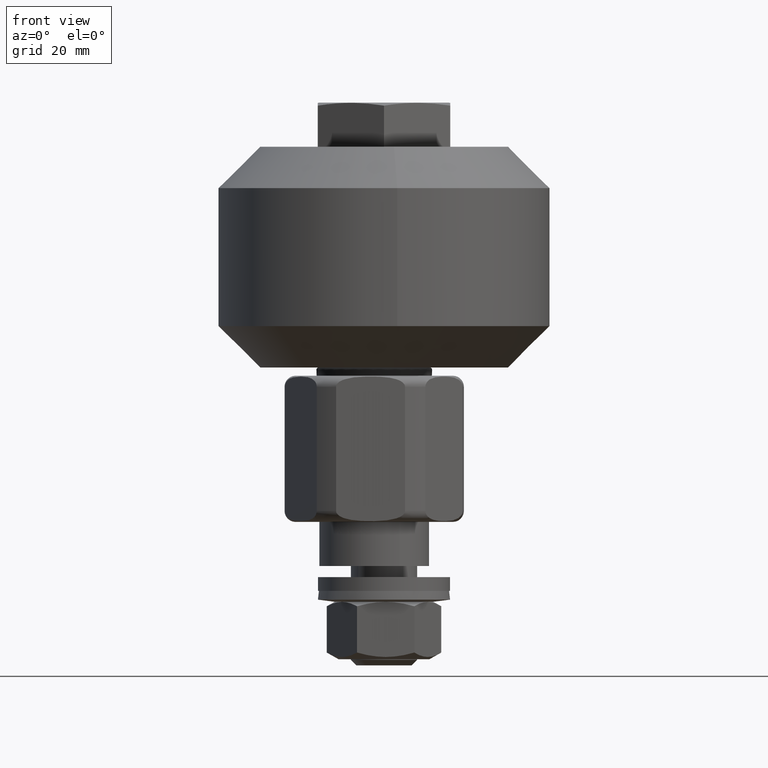
[diagram: clean part render]
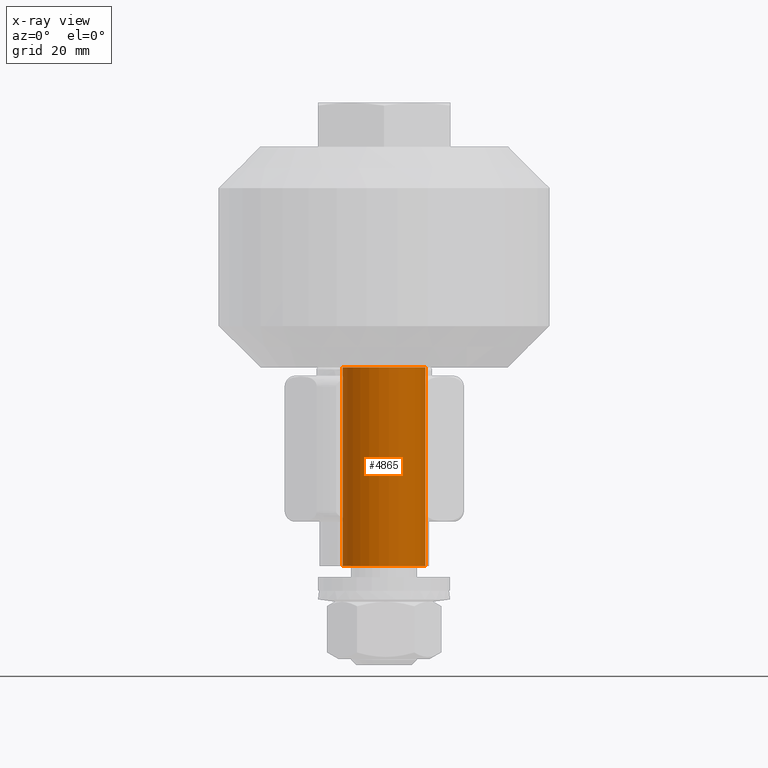
[diagram: x-ray — body ghosted, one internal face saturated and labeled with its STEP entity id]
A machine part, front view, then the same camera in x-ray: the body is ghosted and one INTERNAL B-rep face — a face not visible from any outside direction — is saturated and labeled: STEP entity #4865.
In plain terms, the highlighted cylindrical surface (bore or boss wall) has radius 7.5 mm, axis along (0, -0, -1).
Its self-contained STEP definition (entity closure, byte-faithful):
#226=CYLINDRICAL_SURFACE('',#5368,7.5);
#477=FACE_OUTER_BOUND('',#756,.T.);
#756=EDGE_LOOP('',(#3409,#3410,#3411,#3412));
#1047=CIRCLE('',#5369,7.5);
#1048=CIRCLE('',#5370,7.5);
#1316=LINE('',#7439,#1606);
#1606=VECTOR('',#6032,7.5);
#2038=VERTEX_POINT('',#7436);
#2039=VERTEX_POINT('',#7438);
#2579=EDGE_CURVE('',#2038,#2038,#1047,.T.);
#2580=EDGE_CURVE('',#2038,#2039,#1316,.T.);
#2581=EDGE_CURVE('',#2039,#2039,#1048,.T.);
#3409=ORIENTED_EDGE('',*,*,#2579,.F.);
#3410=ORIENTED_EDGE('',*,*,#2580,.T.);
#3411=ORIENTED_EDGE('',*,*,#2581,.F.);
#3412=ORIENTED_EDGE('',*,*,#2580,.F.);
#4865=ADVANCED_FACE('',(#477),#226,.F.);
#5368=AXIS2_PLACEMENT_3D('',#7435,#6028,#6029);
#5369=AXIS2_PLACEMENT_3D('',#7437,#6030,#6031);
#5370=AXIS2_PLACEMENT_3D('',#7440,#6033,#6034);
#6028=DIRECTION('center_axis',(1.,0.,0.));
#6029=DIRECTION('ref_axis',(0.,0.,-1.));
#6030=DIRECTION('center_axis',(-1.,0.,0.));
#6031=DIRECTION('ref_axis',(0.,0.,-1.));
#6032=DIRECTION('',(-1.,0.,0.));
#6033=DIRECTION('center_axis',(1.,0.,0.));
#6034=DIRECTION('ref_axis',(0.,0.,-1.));
#7435=CARTESIAN_POINT('Origin',(-35.7814158790371,0.,2.));
#7436=CARTESIAN_POINT('',(21.25,-9.18485099360515E-16,9.5));
#7437=CARTESIAN_POINT('Origin',(21.25,0.,2.));
#7438=CARTESIAN_POINT('',(-14.75,-9.18485099360515E-16,9.5));
#7439=CARTESIAN_POINT('',(-35.7814158790371,-9.18485099360515E-16,9.5));
#7440=CARTESIAN_POINT('Origin',(-14.75,0.,2.));